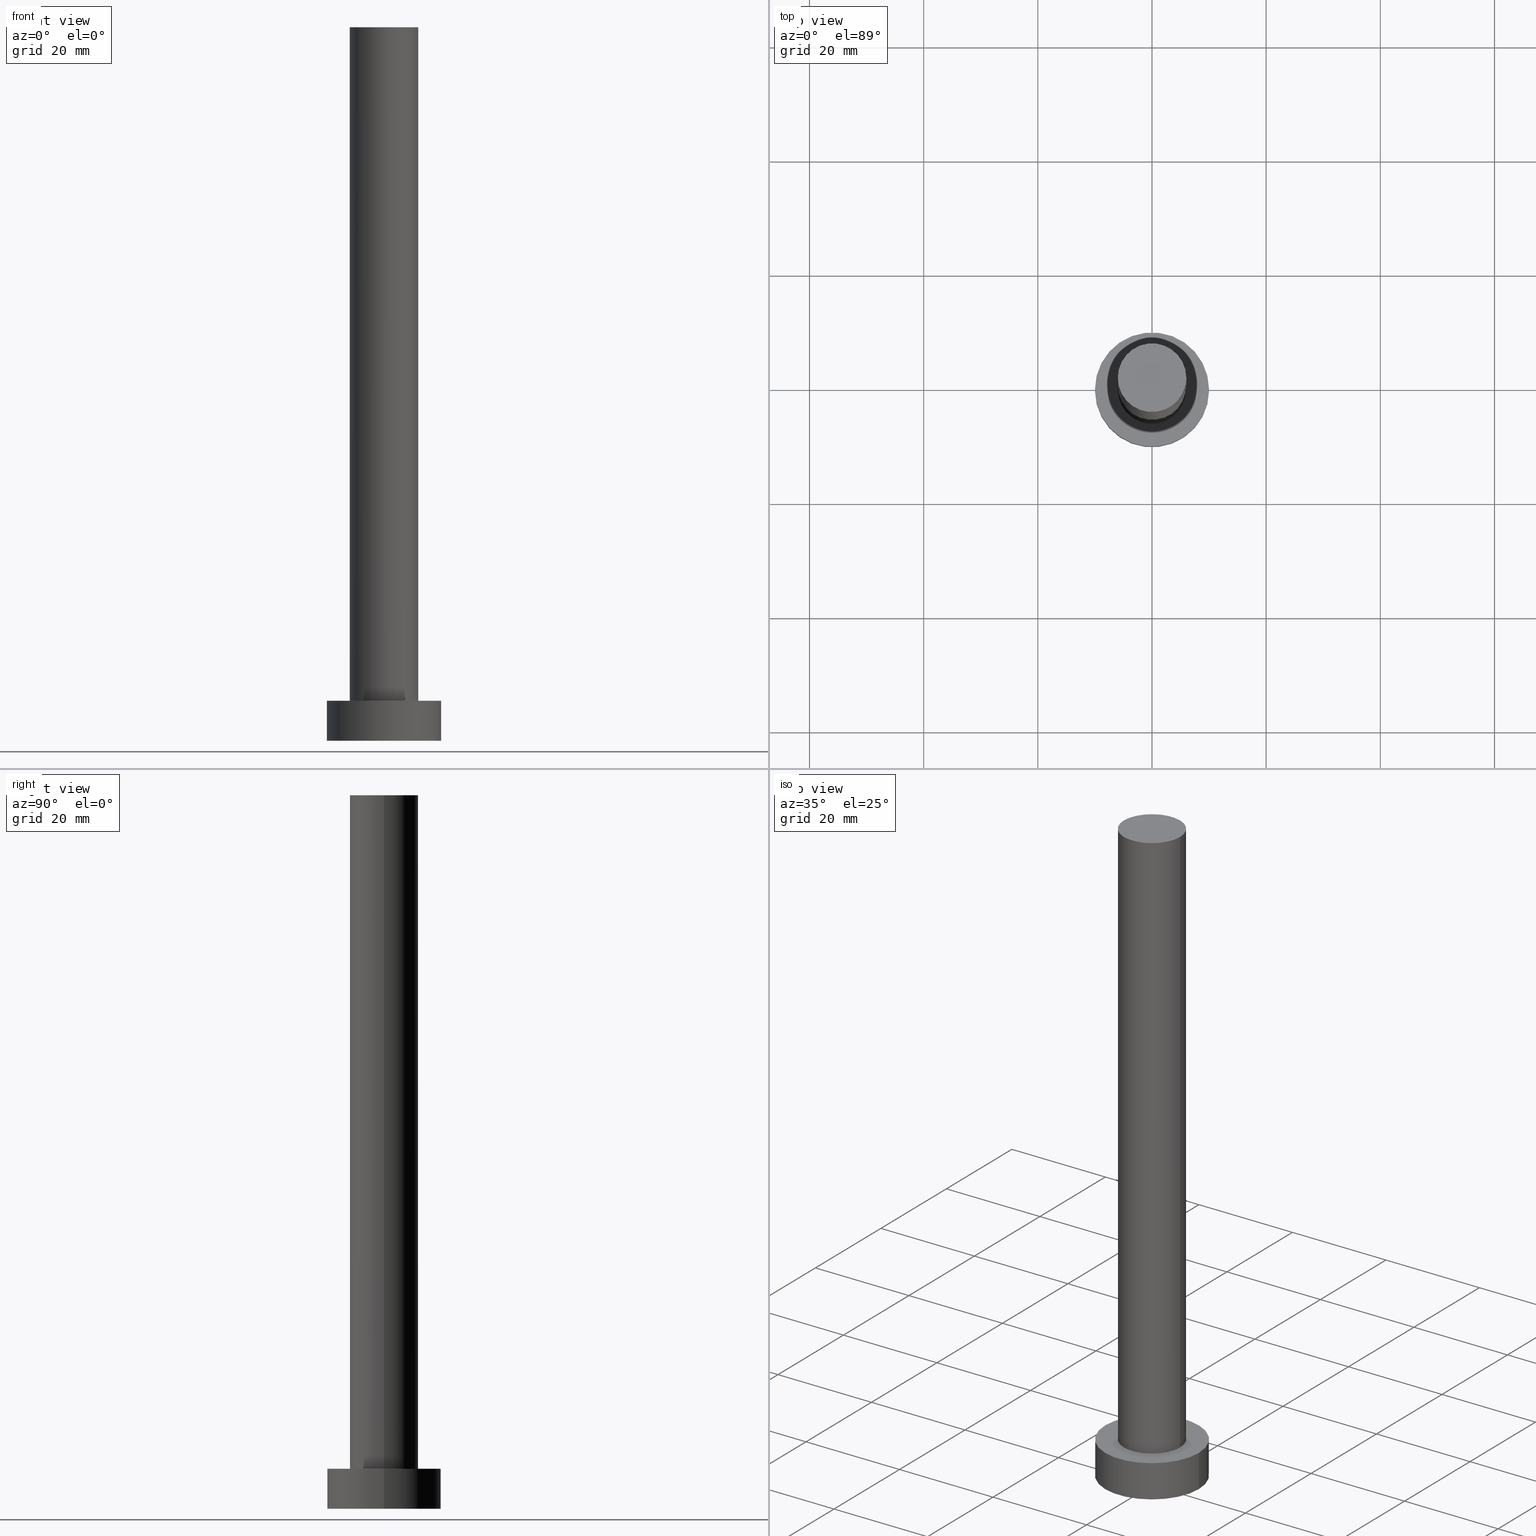
[diagram: canonical four-view strip — front | top / right | iso, engineering-drawing reading convention]
A machine part, canonical four-view strip (front | top / right | iso — engineering-drawing reading convention). The complete STEP part file that produces these views, byte-faithful:
ISO-10303-21;
HEADER;
FILE_DESCRIPTION (( 'STEP AP203' ),
    '1' );
FILE_NAME ('a5b3.STEP',
    '2023-02-13T10:20:43',
    ( '' ),
    ( '' ),
    'SwSTEP 2.0',
    'SolidWorks 2019',
    '' );
FILE_SCHEMA (( 'CONFIG_CONTROL_DESIGN' ));
ENDSEC;

DATA;
#1 = EDGE_CURVE ( 'NONE', #164, #14, #253, .T. ) ;
#2 = DIRECTION ( 'NONE',  ( 0.000000000000000000, 0.000000000000000000, 1.000000000000000000 ) ) ;
#3 = FACE_OUTER_BOUND ( 'NONE', #118, .T. ) ;
#4 = AXIS2_PLACEMENT_3D ( 'NONE', #239, #60, #255 ) ;
#5 = APPROVAL_DATE_TIME ( #124, #109 ) ;
#6 = DIRECTION ( 'NONE',  ( -0.000000000000000000, -0.000000000000000000, -1.000000000000000000 ) ) ;
#7 = PRODUCT_DEFINITION ( 'NEZN�M�', '', #202, #64 ) ;
#8 = LOCAL_TIME ( 11, 20, 43.00000000000000000, #238 ) ;
#9 = MECHANICAL_CONTEXT ( 'NONE', #50, 'mechanical' ) ;
#10 = ADVANCED_FACE ( 'NONE', ( #94 ), #59, .T. ) ;
#11 = DATE_TIME_ROLE ( 'creation_date' ) ;
#12 = DIRECTION ( 'NONE',  ( 1.000000000000000000, 0.000000000000000000, 0.000000000000000000 ) ) ;
#13 = PERSON_AND_ORGANIZATION ( #92, #135 ) ;
#14 = VERTEX_POINT ( 'NONE', #201 ) ;
#15 = DIRECTION ( 'NONE',  ( 1.000000000000000000, 0.000000000000000000, -0.000000000000000000 ) ) ;
#16 = APPROVAL_STATUS ( 'not_yet_approved' ) ;
#17 = FACE_OUTER_BOUND ( 'NONE', #210, .T. ) ;
#18 = CARTESIAN_POINT ( 'NONE',  ( -6.000000000000000888, 0.000000000000000000, 125.0000000000000000 ) ) ;
#19 = CARTESIAN_POINT ( 'NONE',  ( -10.00000000000000000, 0.000000000000000000, 7.000000000000000000 ) ) ;
#20 = FACE_OUTER_BOUND ( 'NONE', #86, .T. ) ;
#21 = AXIS2_PLACEMENT_3D ( 'NONE', #246, #245, #226 ) ;
#22 = LINE ( 'NONE', #46, #211 ) ;
#23 = FACE_OUTER_BOUND ( 'NONE', #91, .T. ) ;
#24 = AXIS2_PLACEMENT_3D ( 'NONE', #115, #192, #12 ) ;
#25 = APPLICATION_PROTOCOL_DEFINITION ( 'international standard', 'config_control_design', 1994, #50 ) ;
#26 = APPROVAL ( #154, 'NEUR�EN�' ) ;
#27 = DIRECTION ( 'NONE',  ( 0.000000000000000000, 0.000000000000000000, 1.000000000000000000 ) ) ;
#28 = APPROVAL_ROLE ( '' ) ;
#29 = EDGE_CURVE ( 'NONE', #229, #129, #178, .T. ) ;
#30 = ORIENTED_EDGE ( 'NONE', *, *, #251, .F. ) ;
#31 = AXIS2_PLACEMENT_3D ( 'NONE', #43, #110, #146 ) ;
#32 = DATE_AND_TIME ( #90, #197 ) ;
#33 = ORIENTED_EDGE ( 'NONE', *, *, #179, .F. ) ;
#34 = VERTEX_POINT ( 'NONE', #127 ) ;
#35 = EDGE_CURVE ( 'NONE', #34, #176, #61, .T. ) ;
#36 = ORIENTED_EDGE ( 'NONE', *, *, #251, .T. ) ;
#37 = CALENDAR_DATE ( 2023, 13, 2 ) ;
#38 = CARTESIAN_POINT ( 'NONE',  ( 10.00000000000000000, 1.224646799147353256E-15, 7.000000000000000000 ) ) ;
#39 = DATE_TIME_ROLE ( 'classification_date' ) ;
#40 = LINE ( 'NONE', #79, #116 ) ;
#41 = DIRECTION ( 'NONE',  ( 1.000000000000000000, 0.000000000000000000, 0.000000000000000000 ) ) ;
#42 = CC_DESIGN_PERSON_AND_ORGANIZATION_ASSIGNMENT ( #71, #231, ( #7 ) ) ;
#43 = CARTESIAN_POINT ( 'NONE',  ( 0.000000000000000000, 0.000000000000000000, 7.000000000000000000 ) ) ;
#44 = AXIS2_PLACEMENT_3D ( 'NONE', #207, #27, #187 ) ;
#45 = CARTESIAN_POINT ( 'NONE',  ( 0.000000000000000000, 0.000000000000000000, 7.000000000000000000 ) ) ;
#46 = CARTESIAN_POINT ( 'NONE',  ( 6.000000000000000888, 7.347880794884120722E-16, 125.0000000000000000 ) ) ;
#47 = ORIENTED_EDGE ( 'NONE', *, *, #216, .T. ) ;
#48 = CC_DESIGN_PERSON_AND_ORGANIZATION_ASSIGNMENT ( #233, #70, ( #202 ) ) ;
#49 = PERSON_AND_ORGANIZATION ( #92, #135 ) ;
#50 = APPLICATION_CONTEXT ( 'configuration controlled 3d designs of mechanical parts and assemblies' ) ;
#51 = ORIENTED_EDGE ( 'NONE', *, *, #161, .T. ) ;
#52 = PERSON_AND_ORGANIZATION_ROLE ( 'design_supplier' ) ;
#53 = EDGE_LOOP ( 'NONE', ( #148, #194, #51, #189 ) ) ;
#54 = ORIENTED_EDGE ( 'NONE', *, *, #247, .T. ) ;
#55 = DATE_AND_TIME ( #114, #88 ) ;
#56 = ORIENTED_EDGE ( 'NONE', *, *, #214, .F. ) ;
#57 = CC_DESIGN_APPROVAL ( #26, ( #7 ) ) ;
#58 = DIRECTION ( 'NONE',  ( 0.000000000000000000, 0.000000000000000000, 1.000000000000000000 ) ) ;
#59 = PLANE ( 'NONE',  #172 ) ;
#60 = DIRECTION ( 'NONE',  ( 0.000000000000000000, 0.000000000000000000, 1.000000000000000000 ) ) ;
#61 = CIRCLE ( 'NONE', #156, 6.000000000000000888 ) ;
#62 = DATE_AND_TIME ( #37, #8 ) ;
#63 = CARTESIAN_POINT ( 'NONE',  ( 0.000000000000000000, 0.000000000000000000, 7.000000000000000000 ) ) ;
#64 = DESIGN_CONTEXT ( 'detailed design', #162, 'design' ) ;
#65 = DIRECTION ( 'NONE',  ( 0.000000000000000000, 0.000000000000000000, 1.000000000000000000 ) ) ;
#66 = DIRECTION ( 'NONE',  ( 1.000000000000000000, 0.000000000000000000, 0.000000000000000000 ) ) ;
#67 = DIRECTION ( 'NONE',  ( -0.000000000000000000, -0.000000000000000000, -1.000000000000000000 ) ) ;
#68 = CIRCLE ( 'NONE', #21, 6.000000000000000888 ) ;
#69 = ORIENTED_EDGE ( 'NONE', *, *, #35, .F. ) ;
#70 = PERSON_AND_ORGANIZATION_ROLE ( 'creator' ) ;
#71 = PERSON_AND_ORGANIZATION ( #92, #135 ) ;
#72 = ORIENTED_EDGE ( 'NONE', *, *, #179, .T. ) ;
#73 = ADVANCED_FACE ( 'NONE', ( #17 ), #237, .T. ) ;
#74 = CIRCLE ( 'NONE', #4, 6.000000000000000888 ) ;
#75 = CYLINDRICAL_SURFACE ( 'NONE', #254, 6.000000000000000888 ) ;
#76 = CIRCLE ( 'NONE', #97, 10.00000000000000000 ) ;
#77 = PERSON_AND_ORGANIZATION ( #92, #135 ) ;
#78 = CARTESIAN_POINT ( 'NONE',  ( 0.000000000000000000, 0.000000000000000000, 125.0000000000000000 ) ) ;
#79 = CARTESIAN_POINT ( 'NONE',  ( -6.000000000000000888, 0.000000000000000000, 125.0000000000000000 ) ) ;
#80 = APPROVAL_ROLE ( '' ) ;
#81 = PLANE ( 'NONE',  #144 ) ;
#82 = DIRECTION ( 'NONE',  ( -0.000000000000000000, -0.000000000000000000, -1.000000000000000000 ) ) ;
#83 = ADVANCED_FACE ( 'NONE', ( #104 ), #136, .F. ) ;
#84 = LOCAL_TIME ( 11, 20, 43.00000000000000000, #170 ) ;
#85 =( LENGTH_UNIT ( ) NAMED_UNIT ( * ) SI_UNIT ( .MILLI., .METRE. ) );
#86 = EDGE_LOOP ( 'NONE', ( #145, #36, #169, #151 ) ) ;
#87 = VECTOR ( 'NONE', #105, 1000.000000000000000 ) ;
#88 = LOCAL_TIME ( 11, 20, 43.00000000000000000, #208 ) ;
#89 = VERTEX_POINT ( 'NONE', #196 ) ;
#90 = CALENDAR_DATE ( 2023, 13, 2 ) ;
#91 = EDGE_LOOP ( 'NONE', ( #33, #215, #47, #112 ) ) ;
#92 = PERSON ( 'NEUR�EN�', 'NEUR�EN�', 'NEUR�EN�', ('NEUR�EN�'), ('NEUR�EN�'), ('NEUR�EN�') ) ;
#93 = APPLICATION_PROTOCOL_DEFINITION ( 'international standard', 'config_control_design', 1994, #162 ) ;
#94 = FACE_OUTER_BOUND ( 'NONE', #131, .T. ) ;
#95 = CC_DESIGN_PERSON_AND_ORGANIZATION_ASSIGNMENT ( #13, #98, ( #122 ) ) ;
#96 = DATE_AND_TIME ( #228, #84 ) ;
#97 = AXIS2_PLACEMENT_3D ( 'NONE', #140, #185, #141 ) ;
#98 = PERSON_AND_ORGANIZATION_ROLE ( 'classification_officer' ) ;
#99 = CARTESIAN_POINT ( 'NONE',  ( 0.000000000000000000, 0.000000000000000000, 7.000000000000000000 ) ) ;
#100 = APPROVAL ( #174, 'NEUR�EN�' ) ;
#101 = VECTOR ( 'NONE', #159, 1000.000000000000000 ) ;
#102 = SHAPE_DEFINITION_REPRESENTATION ( #242, #232 ) ;
#103 = CALENDAR_DATE ( 2023, 13, 2 ) ;
#104 = FACE_OUTER_BOUND ( 'NONE', #119, .T. ) ;
#105 = DIRECTION ( 'NONE',  ( -0.000000000000000000, -0.000000000000000000, -1.000000000000000000 ) ) ;
#106 = CARTESIAN_POINT ( 'NONE',  ( 0.000000000000000000, 0.000000000000000000, 125.0000000000000000 ) ) ;
#107 = EDGE_CURVE ( 'NONE', #164, #176, #40, .T. ) ;
#108 = DIRECTION ( 'NONE',  ( -0.000000000000000000, -0.000000000000000000, -1.000000000000000000 ) ) ;
#109 = APPROVAL ( #16, 'NEUR�EN�' ) ;
#110 = DIRECTION ( 'NONE',  ( -0.000000000000000000, -0.000000000000000000, -1.000000000000000000 ) ) ;
#111 = LOCAL_TIME ( 11, 20, 43.00000000000000000, #218 ) ;
#112 = ORIENTED_EDGE ( 'NONE', *, *, #161, .F. ) ;
#113 = AXIS2_PLACEMENT_3D ( 'NONE', #45, #67, #167 ) ;
#114 = CALENDAR_DATE ( 2023, 13, 2 ) ;
#115 = CARTESIAN_POINT ( 'NONE',  ( 0.000000000000000000, 0.000000000000000000, 125.0000000000000000 ) ) ;
#116 = VECTOR ( 'NONE', #221, 1000.000000000000000 ) ;
#117 = PERSON_AND_ORGANIZATION ( #92, #135 ) ;
#118 = EDGE_LOOP ( 'NONE', ( #249, #72 ) ) ;
#119 = EDGE_LOOP ( 'NONE', ( #56, #155 ) ) ;
#120 = CARTESIAN_POINT ( 'NONE',  ( 0.000000000000000000, 0.000000000000000000, 125.0000000000000000 ) ) ;
#121 = CARTESIAN_POINT ( 'NONE',  ( 10.00000000000000000, 1.224646799147353256E-15, 7.000000000000000000 ) ) ;
#122 = SECURITY_CLASSIFICATION ( '', '', #212 ) ;
#123 = PRODUCT ( 'a5b3', 'a5b3', '', ( #9 ) ) ;
#124 = DATE_AND_TIME ( #103, #111 ) ;
#125 = CARTESIAN_POINT ( 'NONE',  ( 0.000000000000000000, 0.000000000000000000, 7.000000000000000000 ) ) ;
#126 = AXIS2_PLACEMENT_3D ( 'NONE', #200, #58, #244 ) ;
#127 = CARTESIAN_POINT ( 'NONE',  ( 6.000000000000000888, 7.347880794884120722E-16, 7.000000000000000000 ) ) ;
#128 =( NAMED_UNIT ( * ) SI_UNIT ( $, .STERADIAN. ) SOLID_ANGLE_UNIT ( ) );
#129 = VERTEX_POINT ( 'NONE', #38 ) ;
#130 = CLOSED_SHELL ( 'NONE', ( #205, #224, #250, #175, #83, #73, #10 ) ) ;
#131 = EDGE_LOOP ( 'NONE', ( #133, #147 ) ) ;
#132 = VERTEX_POINT ( 'NONE', #180 ) ;
#133 = ORIENTED_EDGE ( 'NONE', *, *, #1, .T. ) ;
#134 = EDGE_CURVE ( 'NONE', #129, #132, #177, .T. ) ;
#135 = ORGANIZATION ( 'NEUR�EN�', 'NEUR�EN�', '' ) ;
#136 = PLANE ( 'NONE',  #209 ) ;
#137 = FACE_BOUND ( 'NONE', #234, .T. ) ;
#138 = APPROVAL_PERSON_ORGANIZATION ( #49, #100, #195 ) ;
#139 = DIRECTION ( 'NONE',  ( 1.000000000000000000, 0.000000000000000000, 0.000000000000000000 ) ) ;
#140 = CARTESIAN_POINT ( 'NONE',  ( 0.000000000000000000, 0.000000000000000000, 0.000000000000000000 ) ) ;
#141 = DIRECTION ( 'NONE',  ( 1.000000000000000000, 0.000000000000000000, 0.000000000000000000 ) ) ;
#142 = CIRCLE ( 'NONE', #190, 10.00000000000000000 ) ;
#143 =( NAMED_UNIT ( * ) PLANE_ANGLE_UNIT ( ) SI_UNIT ( $, .RADIAN. ) );
#144 = AXIS2_PLACEMENT_3D ( 'NONE', #125, #160, #15 ) ;
#145 = ORIENTED_EDGE ( 'NONE', *, *, #157, .F. ) ;
#146 = DIRECTION ( 'NONE',  ( -1.000000000000000000, 0.000000000000000000, 0.000000000000000000 ) ) ;
#147 = ORIENTED_EDGE ( 'NONE', *, *, #157, .T. ) ;
#148 = ORIENTED_EDGE ( 'NONE', *, *, #134, .F. ) ;
#149 = CC_DESIGN_PERSON_AND_ORGANIZATION_ASSIGNMENT ( #150, #52, ( #202 ) ) ;
#150 = PERSON_AND_ORGANIZATION ( #92, #135 ) ;
#151 = ORIENTED_EDGE ( 'NONE', *, *, #107, .F. ) ;
#152 = APPROVAL_PERSON_ORGANIZATION ( #77, #109, #80 ) ;
#153 = PERSON_AND_ORGANIZATION_ROLE ( 'design_owner' ) ;
#154 = APPROVAL_STATUS ( 'not_yet_approved' ) ;
#155 = ORIENTED_EDGE ( 'NONE', *, *, #216, .F. ) ;
#156 = AXIS2_PLACEMENT_3D ( 'NONE', #99, #184, #41 ) ;
#157 = EDGE_CURVE ( 'NONE', #14, #164, #74, .T. ) ;
#158 = DIRECTION ( 'NONE',  ( 0.000000000000000000, 0.000000000000000000, 1.000000000000000000 ) ) ;
#159 = DIRECTION ( 'NONE',  ( -0.000000000000000000, -0.000000000000000000, -1.000000000000000000 ) ) ;
#160 = DIRECTION ( 'NONE',  ( 0.000000000000000000, 0.000000000000000000, 1.000000000000000000 ) ) ;
#161 = EDGE_CURVE ( 'NONE', #229, #89, #198, .T. ) ;
#162 = APPLICATION_CONTEXT ( 'configuration controlled 3d designs of mechanical parts and assemblies' ) ;
#163 = CARTESIAN_POINT ( 'NONE',  ( -10.00000000000000000, 0.000000000000000000, 7.000000000000000000 ) ) ;
#164 = VERTEX_POINT ( 'NONE', #18 ) ;
#165 = DIRECTION ( 'NONE',  ( 0.000000000000000000, 0.000000000000000000, 1.000000000000000000 ) ) ;
#166 =( GEOMETRIC_REPRESENTATION_CONTEXT ( 3 ) GLOBAL_UNCERTAINTY_ASSIGNED_CONTEXT ( ( #220 ) ) GLOBAL_UNIT_ASSIGNED_CONTEXT ( ( #85, #143, #128 ) ) REPRESENTATION_CONTEXT ( 'NONE', 'WORKASPACE' ) );
#167 = DIRECTION ( 'NONE',  ( -1.000000000000000000, 0.000000000000000000, 0.000000000000000000 ) ) ;
#168 = APPROVAL_PERSON_ORGANIZATION ( #171, #26, #28 ) ;
#169 = ORIENTED_EDGE ( 'NONE', *, *, #35, .T. ) ;
#170 = COORDINATED_UNIVERSAL_TIME_OFFSET ( 1, 0, .AHEAD. ) ;
#171 = PERSON_AND_ORGANIZATION ( #92, #135 ) ;
#172 = AXIS2_PLACEMENT_3D ( 'NONE', #120, #158, #223 ) ;
#173 = CC_DESIGN_APPROVAL ( #109, ( #122 ) ) ;
#174 = APPROVAL_STATUS ( 'not_yet_approved' ) ;
#175 = ADVANCED_FACE ( 'NONE', ( #137, #3 ), #81, .T. ) ;
#176 = VERTEX_POINT ( 'NONE', #241 ) ;
#177 = LINE ( 'NONE', #121, #101 ) ;
#178 = CIRCLE ( 'NONE', #126, 10.00000000000000000 ) ;
#179 = EDGE_CURVE ( 'NONE', #129, #229, #183, .T. ) ;
#180 = CARTESIAN_POINT ( 'NONE',  ( 10.00000000000000000, 1.224646799147353256E-15, 0.000000000000000000 ) ) ;
#181 = DIRECTION ( 'NONE',  ( 1.000000000000000000, 0.000000000000000000, -0.000000000000000000 ) ) ;
#182 = CARTESIAN_POINT ( 'NONE',  ( 0.000000000000000000, 0.000000000000000000, 0.000000000000000000 ) ) ;
#183 = CIRCLE ( 'NONE', #236, 10.00000000000000000 ) ;
#184 = DIRECTION ( 'NONE',  ( 0.000000000000000000, 0.000000000000000000, 1.000000000000000000 ) ) ;
#185 = DIRECTION ( 'NONE',  ( 0.000000000000000000, 0.000000000000000000, 1.000000000000000000 ) ) ;
#186 = CYLINDRICAL_SURFACE ( 'NONE', #113, 10.00000000000000000 ) ;
#187 = DIRECTION ( 'NONE',  ( 1.000000000000000000, 0.000000000000000000, 0.000000000000000000 ) ) ;
#188 = APPROVAL_DATE_TIME ( #32, #26 ) ;
#189 = ORIENTED_EDGE ( 'NONE', *, *, #214, .T. ) ;
#190 = AXIS2_PLACEMENT_3D ( 'NONE', #248, #165, #66 ) ;
#191 = APPROVAL_DATE_TIME ( #55, #100 ) ;
#192 = DIRECTION ( 'NONE',  ( 0.000000000000000000, 0.000000000000000000, 1.000000000000000000 ) ) ;
#193 = ORIENTED_EDGE ( 'NONE', *, *, #1, .F. ) ;
#194 = ORIENTED_EDGE ( 'NONE', *, *, #29, .F. ) ;
#195 = APPROVAL_ROLE ( '' ) ;
#196 = CARTESIAN_POINT ( 'NONE',  ( -10.00000000000000000, 0.000000000000000000, 0.000000000000000000 ) ) ;
#197 = LOCAL_TIME ( 11, 20, 43.00000000000000000, #252 ) ;
#198 = LINE ( 'NONE', #19, #87 ) ;
#199 = CC_DESIGN_SECURITY_CLASSIFICATION ( #122, ( #202 ) ) ;
#200 = CARTESIAN_POINT ( 'NONE',  ( 0.000000000000000000, 0.000000000000000000, 7.000000000000000000 ) ) ;
#201 = CARTESIAN_POINT ( 'NONE',  ( 6.000000000000000888, 7.347880794884120722E-16, 125.0000000000000000 ) ) ;
#202 = PRODUCT_DEFINITION_FORMATION_WITH_SPECIFIED_SOURCE ( 'LIBOVOLN�', '', #123, .NOT_KNOWN. ) ;
#203 = MANIFOLD_SOLID_BREP ( 'P�idat vysunut�m3', #130 ) ;
#204 = FACE_OUTER_BOUND ( 'NONE', #53, .T. ) ;
#205 = ADVANCED_FACE ( 'NONE', ( #20 ), #75, .T. ) ;
#206 = CC_DESIGN_DATE_AND_TIME_ASSIGNMENT ( #62, #39, ( #122 ) ) ;
#207 = CARTESIAN_POINT ( 'NONE',  ( 0.000000000000000000, 0.000000000000000000, 0.000000000000000000 ) ) ;
#208 = COORDINATED_UNIVERSAL_TIME_OFFSET ( 1, 0, .AHEAD. ) ;
#209 = AXIS2_PLACEMENT_3D ( 'NONE', #182, #2, #181 ) ;
#210 = EDGE_LOOP ( 'NONE', ( #30, #193, #235, #54 ) ) ;
#211 = VECTOR ( 'NONE', #108, 1000.000000000000000 ) ;
#212 = SECURITY_CLASSIFICATION_LEVEL ( 'unclassified' ) ;
#213 = ORIENTED_EDGE ( 'NONE', *, *, #247, .F. ) ;
#214 = EDGE_CURVE ( 'NONE', #89, #132, #76, .T. ) ;
#215 = ORIENTED_EDGE ( 'NONE', *, *, #134, .T. ) ;
#216 = EDGE_CURVE ( 'NONE', #132, #89, #142, .T. ) ;
#217 = PRODUCT_RELATED_PRODUCT_CATEGORY ( 'detail', '', ( #123 ) ) ;
#218 = COORDINATED_UNIVERSAL_TIME_OFFSET ( 1, 0, .AHEAD. ) ;
#219 = DIRECTION ( 'NONE',  ( -1.000000000000000000, 0.000000000000000000, 0.000000000000000000 ) ) ;
#220 = UNCERTAINTY_MEASURE_WITH_UNIT (LENGTH_MEASURE( 1.000000000000000082E-05 ), #85, 'distance_accuracy_value', 'NONE');
#221 = DIRECTION ( 'NONE',  ( -0.000000000000000000, -0.000000000000000000, -1.000000000000000000 ) ) ;
#222 = DIRECTION ( 'NONE',  ( -1.000000000000000000, 0.000000000000000000, 0.000000000000000000 ) ) ;
#223 = DIRECTION ( 'NONE',  ( 1.000000000000000000, 0.000000000000000000, -0.000000000000000000 ) ) ;
#224 = ADVANCED_FACE ( 'NONE', ( #23 ), #225, .T. ) ;
#225 = CYLINDRICAL_SURFACE ( 'NONE', #31, 10.00000000000000000 ) ;
#226 = DIRECTION ( 'NONE',  ( 1.000000000000000000, 0.000000000000000000, 0.000000000000000000 ) ) ;
#227 = CC_DESIGN_DATE_AND_TIME_ASSIGNMENT ( #96, #11, ( #7 ) ) ;
#228 = CALENDAR_DATE ( 2023, 13, 2 ) ;
#229 = VERTEX_POINT ( 'NONE', #163 ) ;
#230 = CC_DESIGN_APPROVAL ( #100, ( #202 ) ) ;
#231 = PERSON_AND_ORGANIZATION_ROLE ( 'creator' ) ;
#232 = ADVANCED_BREP_SHAPE_REPRESENTATION ( 'a5b3', ( #203, #44 ), #166 ) ;
#233 = PERSON_AND_ORGANIZATION ( #92, #135 ) ;
#234 = EDGE_LOOP ( 'NONE', ( #213, #69 ) ) ;
#235 = ORIENTED_EDGE ( 'NONE', *, *, #107, .T. ) ;
#236 = AXIS2_PLACEMENT_3D ( 'NONE', #63, #65, #139 ) ;
#237 = CYLINDRICAL_SURFACE ( 'NONE', #240, 6.000000000000000888 ) ;
#238 = COORDINATED_UNIVERSAL_TIME_OFFSET ( 1, 0, .AHEAD. ) ;
#239 = CARTESIAN_POINT ( 'NONE',  ( 0.000000000000000000, 0.000000000000000000, 125.0000000000000000 ) ) ;
#240 = AXIS2_PLACEMENT_3D ( 'NONE', #78, #6, #219 ) ;
#241 = CARTESIAN_POINT ( 'NONE',  ( -6.000000000000000888, 0.000000000000000000, 7.000000000000000000 ) ) ;
#242 = PRODUCT_DEFINITION_SHAPE ( 'NONE', 'NONE',  #7 ) ;
#243 = CC_DESIGN_PERSON_AND_ORGANIZATION_ASSIGNMENT ( #117, #153, ( #123 ) ) ;
#244 = DIRECTION ( 'NONE',  ( 1.000000000000000000, 0.000000000000000000, 0.000000000000000000 ) ) ;
#245 = DIRECTION ( 'NONE',  ( 0.000000000000000000, 0.000000000000000000, 1.000000000000000000 ) ) ;
#246 = CARTESIAN_POINT ( 'NONE',  ( 0.000000000000000000, 0.000000000000000000, 7.000000000000000000 ) ) ;
#247 = EDGE_CURVE ( 'NONE', #176, #34, #68, .T. ) ;
#248 = CARTESIAN_POINT ( 'NONE',  ( 0.000000000000000000, 0.000000000000000000, 0.000000000000000000 ) ) ;
#249 = ORIENTED_EDGE ( 'NONE', *, *, #29, .T. ) ;
#250 = ADVANCED_FACE ( 'NONE', ( #204 ), #186, .T. ) ;
#251 = EDGE_CURVE ( 'NONE', #14, #34, #22, .T. ) ;
#252 = COORDINATED_UNIVERSAL_TIME_OFFSET ( 1, 0, .AHEAD. ) ;
#253 = CIRCLE ( 'NONE', #24, 6.000000000000000888 ) ;
#254 = AXIS2_PLACEMENT_3D ( 'NONE', #106, #82, #222 ) ;
#255 = DIRECTION ( 'NONE',  ( 1.000000000000000000, 0.000000000000000000, 0.000000000000000000 ) ) ;
ENDSEC;
END-ISO-10303-21;
